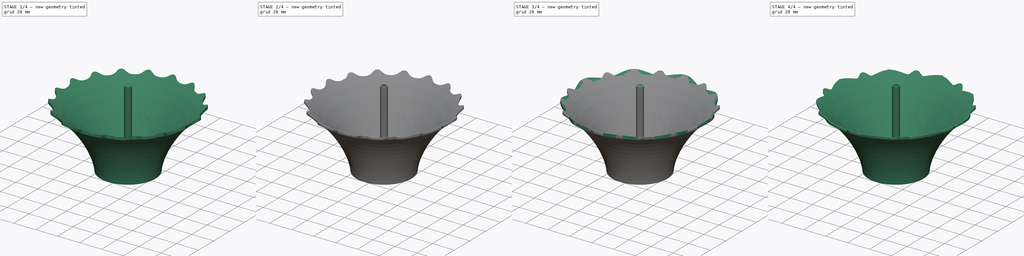
[diagram: build sequence overview — one tinted view per stage of 4, left to right]
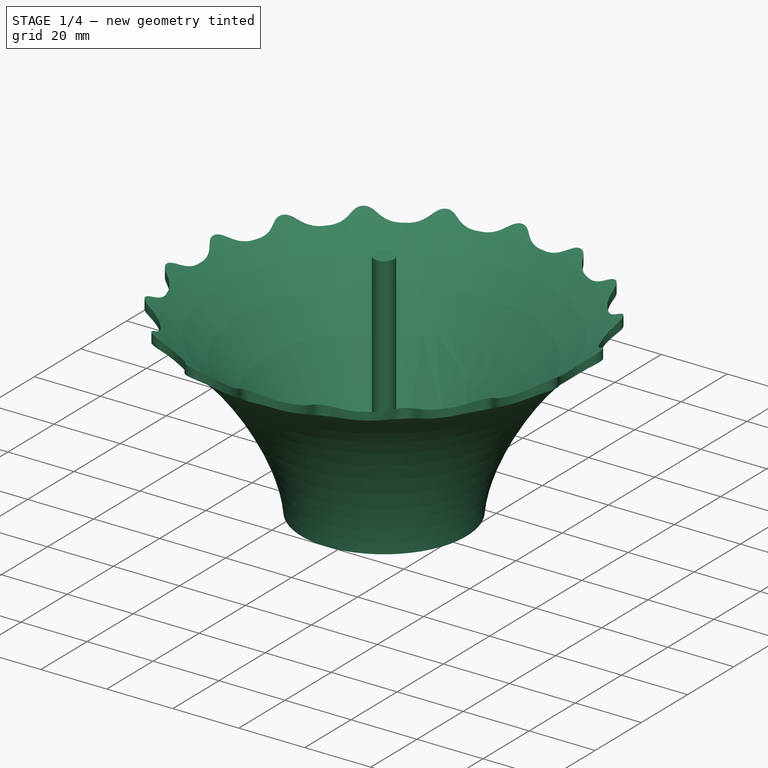
[diagram: stage 1 of 4 — iso view after this stage's code; geometry added in this stage tinted green]
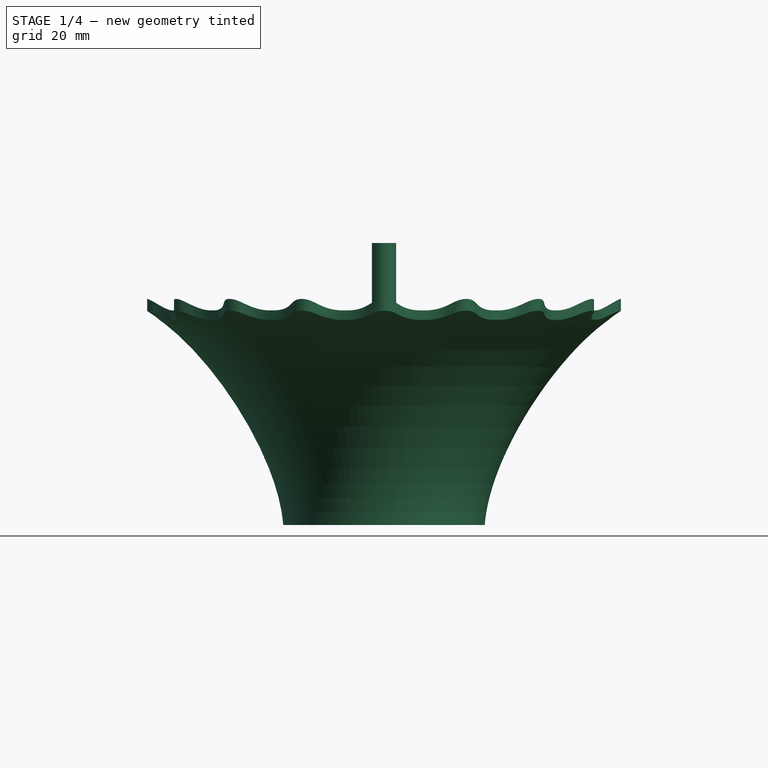
[diagram: stage 1 of 4 — front view after this stage's code; geometry added in this stage tinted green]
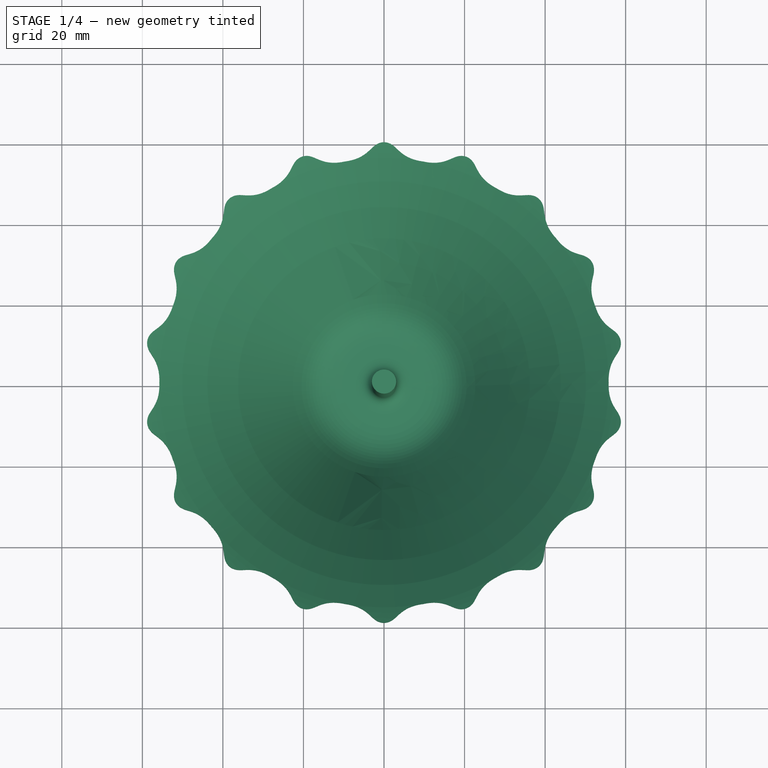
[diagram: stage 1 of 4 — top view after this stage's code; geometry added in this stage tinted green]
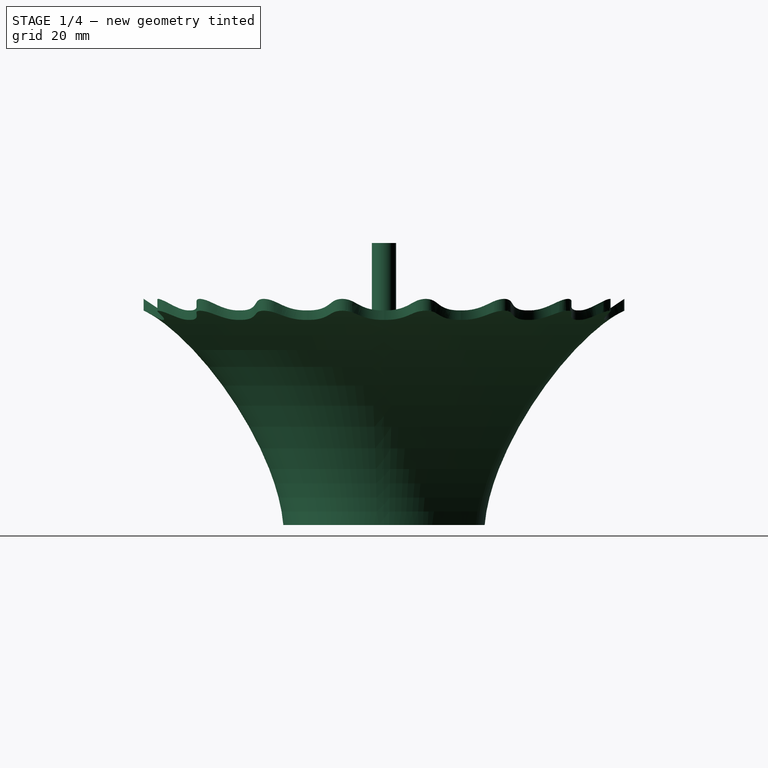
[diagram: stage 1 of 4 — right view after this stage's code; geometry added in this stage tinted green]
FCSTD DOCUMENT  (FreeCAD 1.0R39285 (Git))
Label: incence_holder
License: All rights reserved
objects: Sketcher::SketchObject×8, PartDesign::Pocket×6, PartDesign::Revolution×2, PartDesign::PolarPattern×2, PartDesign::Fillet×2, PartDesign::Body×2
note: 52 computed .brp shape members not serialized (recipe doc carries the construction recipe); baked Part::Feature solids carry a one-line shape summary decoded from their .brp

FEATURE [PartDesign::Body] Body  label="type1"
  AllowCompound = false
  Group = -> [Sketch,Revolution,Sketch001,Pocket,PolarPattern,Sketch002,Pocket001,Sketch003,Pocket002,Fillet]
  Origin = -> Origin
  Tip = -> Fillet
FEATURE [Sketcher::SketchObject] Sketch004
  ArcFitTolerance = 1e-06
  AttachmentSupport = -> [XZ_Plane001]
  FullyConstrained = false
  MakeInternals = false
  MapMode = 5
  Placement = pos=(0,0,0) rot=(1,0,0;1.5708rad)
  sketch-geometry (24):
    g0: LineSegment StartX=0 StartY=70 StartZ=0 EndX=0 EndY=0 EndZ=0
    g1: LineSegment StartX=0 StartY=70 StartZ=0 EndX=3 EndY=70 EndZ=0
    g2: LineSegment StartX=3 StartY=70 StartZ=0 EndX=3 EndY=10 EndZ=0
    g3: LineSegment StartX=0 StartY=0 StartZ=0 EndX=25 EndY=0 EndZ=0
    g4-g7: Circle [constr] x4 (B-spline internal-alignment scaffolding for g8; pole/knot coordinates omitted)
    g8: BSplineCurve PolesCount=4 KnotsCount=2 Degree=3 IsPeriodic=0
    g9: GeomPoint [constr] X=25 Y=0 Z=0
    g10: GeomPoint [constr] X=60 Y=53.3515 Z=0
    g11-g17: Circle [constr] x7 (B-spline internal-alignment scaffolding for g18; pole/knot coordinates omitted)
    g18: BSplineCurve PolesCount=7 KnotsCount=5 Degree=3 IsPeriodic=0
    g19-g22: GeomPoint [constr] x4 (B-spline internal-alignment scaffolding for g18; pole/knot coordinates omitted)
    g23: LineSegment StartX=60 StartY=56.3515 StartZ=0 EndX=60 EndY=53.3515 EndZ=0
  constraints (39):
    c: PointOnObject(g0,g-2)
    c: Coincident(g0,g-1)
    c: Coincident(g1,g0)
    c: Horizontal(g1)
    c: Distance(g1,g1) = 3
    c: DistanceY(g-1,g0) = 70
    c: Distance(g2) = 60
    c: Coincident(g2,g1)
    c: Vertical(g2)
    c: Coincident(g3,g0)
    c: PointOnObject(g3,g-1)
    c: DistanceX(g3,g3) = 25
    c: Weight(g4) = 1
    c: Equal(g4,g5)
    c: Equal(g4,g6)
    c: Equal(g4,g7)
    c: InternalAlignment(g4-g7 -> g8) x4
    c: InternalAlignment(g9,g8)
    c: InternalAlignment(g10,g8)
    c: Distance(g4,g5) = 20
    c: Coincident(g4,g3)
    c: Weight(g11) = 1
    c: Equal(g11, g12-g17) x6
    c: InternalAlignment(g11-g17 -> g18) x7
    c: InternalAlignment(g19-g22 -> g18) x4
    c: Distance(g11,g12) = 5
    c: Distance(g12,g13) = 5
    c: Distance(g13,g14) = 10
    c: Coincident(g11,g2)
    c: Coincident(g15,g5)
    c: Coincident(g16,g6)
    c: Vertical(g18,g8)
    c: Coincident(g23,g18)
    c: Coincident(g23,g8)
    c: DistanceY(g23,g23) = 3
    c: DistanceX(g0,g18) = 60
    c: Vertical(g12,g18)
    c: Horizontal(g13,g12)
    c: Horizontal(g14,g13)
FEATURE [PartDesign::Revolution] Revolution001
  Angle = 360
  Angle2 = 60
  Axis = (0,-2e-16,-1)
  Base = (0,1.55e-14,70)
  Placement = pos=(0,0,0) rot=(1,0,0;1.5708rad)
  Profile = -> Sketch004
  ReferenceAxis = -> Sketch004 [Edge1]
  Refine = true
  Reversed = true
  Suppressed = false
  Type = 0
FEATURE [Sketcher::SketchObject] Sketch005
  ArcFitTolerance = 1e-06
  AttachmentSupport = -> [XY_Plane001]
  ExternalGeometry = -> [Revolution001]
  FullyConstrained = false
  MakeInternals = false
  MapMode = 5
  sketch-geometry (17):
    g0: Circle [constr] CenterX=0 CenterY=0 CenterZ=0 NormalX=0 NormalY=0 NormalZ=1 AngleXU=0 Radius=55.79
    g1-g6: Circle [constr] x6 (B-spline internal-alignment scaffolding for g7; pole/knot coordinates omitted)
    g7: BSplineCurve PolesCount=6 KnotsCount=4 Degree=3 IsPeriodic=0
    g8-g11: GeomPoint [constr] x4 (B-spline internal-alignment scaffolding for g7; pole/knot coordinates omitted)
    g12: LineSegment [constr] StartX=0 StartY=0 StartZ=0 EndX=-9.68783 EndY=54.9424 EndZ=0
    g13: LineSegment [constr] StartX=0 StartY=0 StartZ=0 EndX=9.68783 EndY=54.9424 EndZ=0
    g14: LineSegment StartX=-9.68783 StartY=54.9424 StartZ=0 EndX=-13.2602 EndY=75.2024 EndZ=0
    g15: LineSegment StartX=-13.2602 StartY=75.2024 StartZ=0 EndX=13.2602 EndY=75.2024 EndZ=0
    g16: LineSegment StartX=13.2602 StartY=75.2024 StartZ=0 EndX=9.68783 EndY=54.9424 EndZ=0
  constraints (30):
    c: Coincident(g0,g-1)
    c: Diameter(g-3) = 120
    c: Diameter(g0) = 111.58
    c: Weight(g1) = 1
    c: Equal(g1, g2-g6) x5
    c: InternalAlignment(g1-g6 -> g7) x6
    c: InternalAlignment(g8-g11 -> g7) x4
    c: PointOnObject(g1,g0)
    c: PointOnObject(g2,g0)
    c: PointOnObject(g3,g-3)
    c: PointOnObject(g4,g-3)
    c: PointOnObject(g5,g0)
    c: Coincident(g12,g0)
    c: Coincident(g12,g7)
    c: Coincident(g13,g0)
    c: Coincident(g13,g7)
    c: DistanceX(g3,g-1) = 2.5
    c: DistanceX(g-1,g4) = 2.5
    c: DistanceX(g-1,g5) = 5
    c: DistanceX(g2,g-1) = 5
    c: Angle(g13,g-2) = 0.174533
    c: Angle(g-2,g12) = 0.174533
    c: Coincident(g14,g7)
    c: Coincident(g14,g15)
    c: Horizontal(g15)
    c: Coincident(g15,g16)
    c: PointOnObject(g16,g0)
    c: Angle(g13,g16) = 3.14159
    c: Coincident(g16,g7)
    c: Angle(g12,g14) = 3.14159
FEATURE [PartDesign::Pocket] Pocket003  label="bord_single001"
  BaseFeature = -> Revolution001
  Direction = (0,0,-1)
  Length = 5
  Length2 = 5
  Placement = pos=(0,0,0) rot=(1,0,0;1.5708rad)
  Profile = -> Sketch005
  ReferenceAxis = -> Sketch005 [N_Axis]
  Refine = true
  Reversed = true
  Suppressed = false
  Type = 1
FEATURE [PartDesign::PolarPattern] PolarPattern001  label="bord_polar001"
  Angle = 360
  Axis = -> Z_Axis001
  BaseFeature = -> Pocket003
  Mode = 0
  Occurrences = 18
  Offset = 120
  Originals = -> [Pocket003]
  Placement = pos=(0,0,0) rot=(1,0,0;1.5708rad)
  Refine = true
  Suppressed = false
  TransformMode = 0
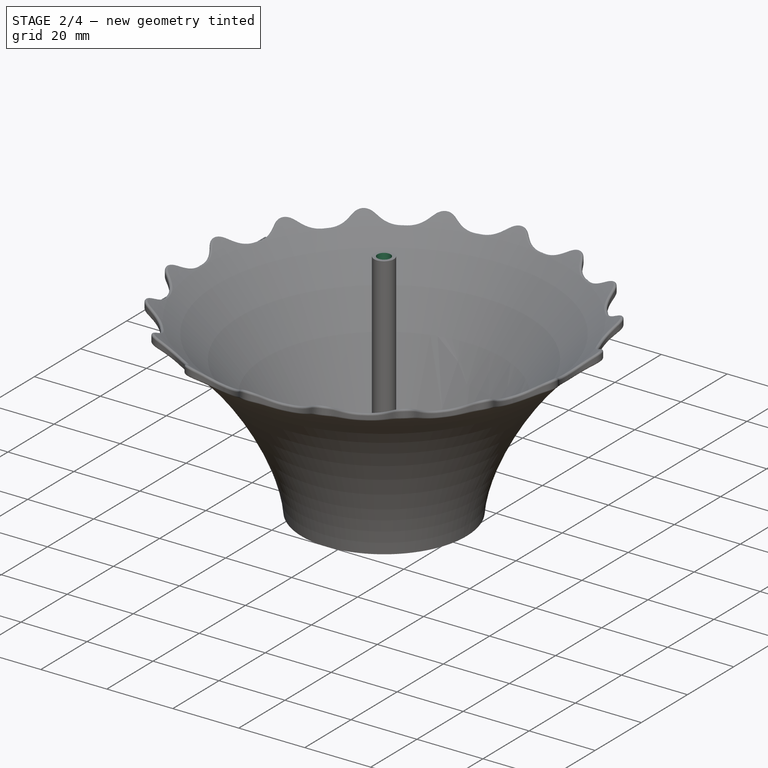
[diagram: stage 2 of 4 — iso view after this stage's code; geometry added in this stage tinted green]
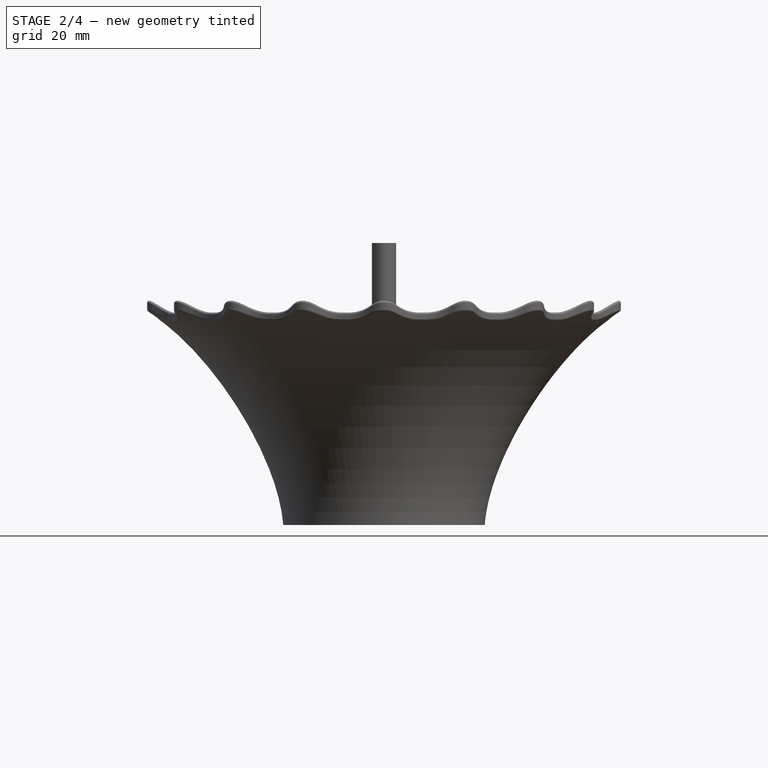
[diagram: stage 2 of 4 — front view after this stage's code; geometry added in this stage tinted green]
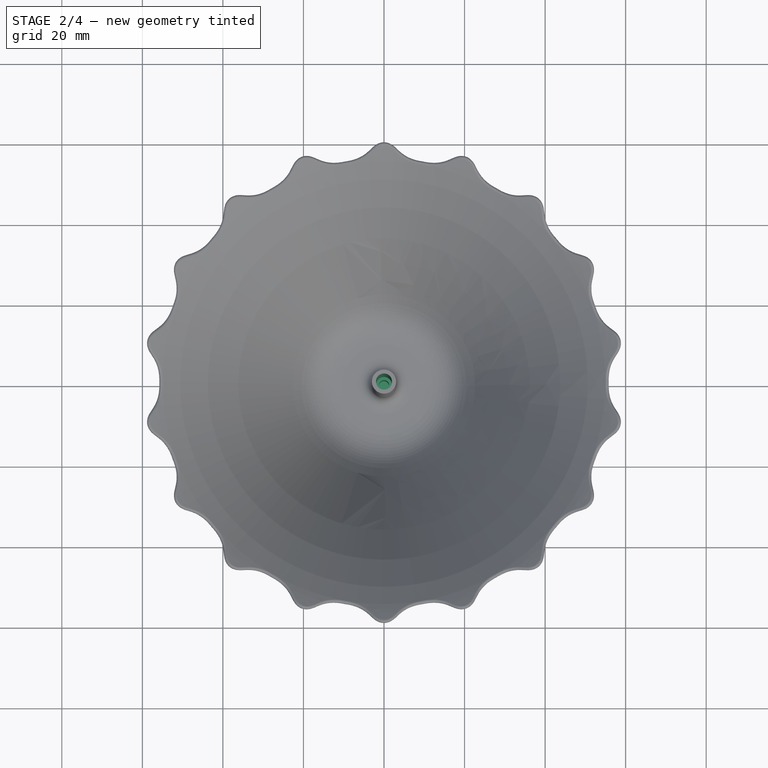
[diagram: stage 2 of 4 — top view after this stage's code; geometry added in this stage tinted green]
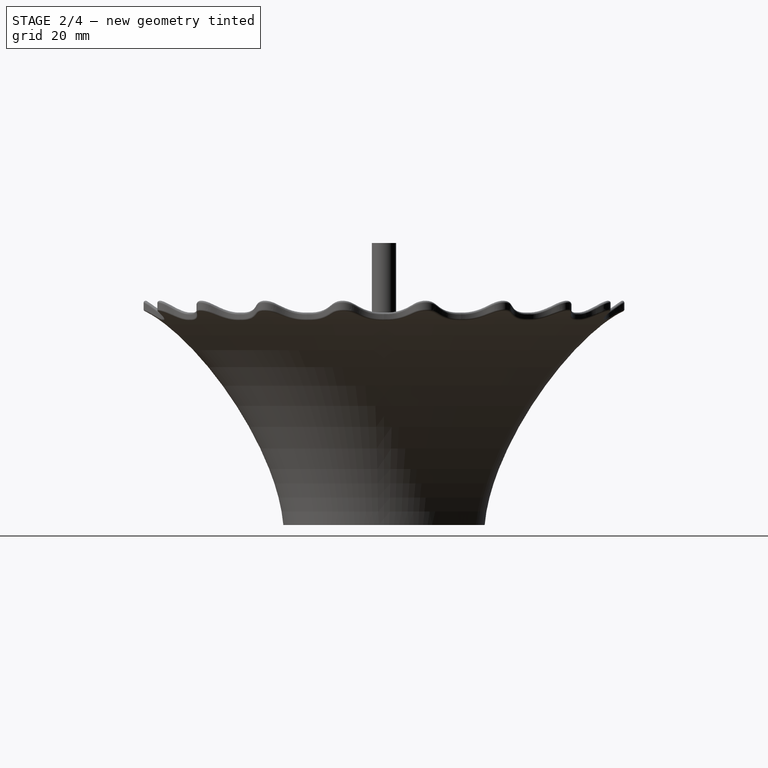
[diagram: stage 2 of 4 — right view after this stage's code; geometry added in this stage tinted green]
FEATURE [Sketcher::SketchObject] Sketch006
  ArcFitTolerance = 1e-06
  AttachmentSupport = -> [PolarPattern001]
  FullyConstrained = true
  MakeInternals = false
  MapMode = 5
  Placement = pos=(0,3.08e-14,70) rot=(0,0,1;3.14159rad)
  sketch-geometry (1):
    g0: Circle CenterX=0 CenterY=0 CenterZ=0 NormalX=0 NormalY=0 NormalZ=1 AngleXU=0 Radius=1.25
  constraints (2):
    c: Diameter(g0) = 2.5
    c: Coincident(g0,g-1)
FEATURE [PartDesign::Pocket] Pocket004  label="small_hole001"
  BaseFeature = -> PolarPattern001
  Direction = (0,0,-1)
  Length = 68
  Length2 = 5
  Placement = pos=(0,0,0) rot=(1,0,0;1.5708rad)
  Profile = -> Sketch006
  ReferenceAxis = -> Sketch006 [N_Axis]
  Refine = true
  Suppressed = false
  Type = 0
FEATURE [Sketcher::SketchObject] Sketch007
  ArcFitTolerance = 1e-06
  AttachmentSupport = -> [Pocket004]
  FullyConstrained = true
  MakeInternals = false
  MapMode = 5
  Placement = pos=(0,3.08e-14,70) rot=(0,0,1;3.14159rad)
  sketch-geometry (1):
    g0: Circle CenterX=0 CenterY=0 CenterZ=0 NormalX=0 NormalY=0 NormalZ=1 AngleXU=0 Radius=2
  constraints (2):
    c: Diameter(g0) = 4
    c: Coincident(g0,g-1)
FEATURE [PartDesign::Pocket] Pocket005  label="big_hole001"
  BaseFeature = -> Pocket004
  Direction = (0,0,-1)
  Length = 50
  Length2 = 5
  Placement = pos=(0,0,0) rot=(1,0,0;1.5708rad)
  Profile = -> Sketch007
  ReferenceAxis = -> Sketch007 [N_Axis]
  Refine = true
  Suppressed = false
  Type = 0
FEATURE [PartDesign::Fillet] Fillet001
  Base = -> Pocket005 [Edge32,Edge8]
  BaseFeature = -> Pocket005
  Placement = pos=(0,0,0) rot=(1,0,0;1.5708rad)
  Radius = 0.5
  Refine = true
  SupportTransform = false
  Suppressed = false
  UseAllEdges = false
FEATURE [PartDesign::Body] Body001  label="type2"
  AllowCompound = false
  Group = -> [Sketch004,Revolution001,Sketch005,Pocket003,PolarPattern001,Sketch006,Pocket004,Sketch007,Pocket005,Fillet001]
  Origin = -> Origin001
  Placement = pos=(141.03,0,0) rot=(0,0,1;0rad)
  Tip = -> Fillet001
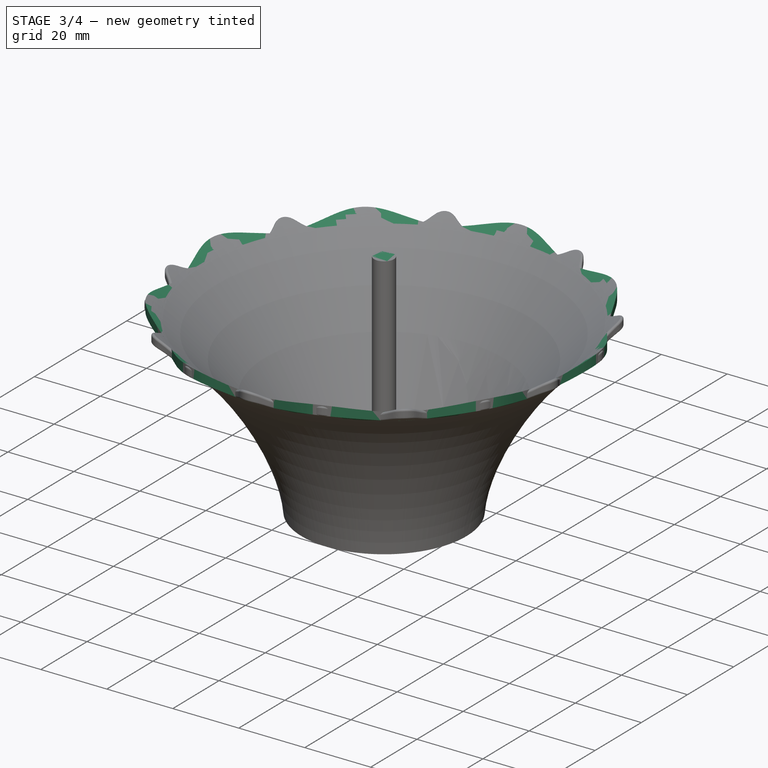
[diagram: stage 3 of 4 — iso view after this stage's code; geometry added in this stage tinted green]
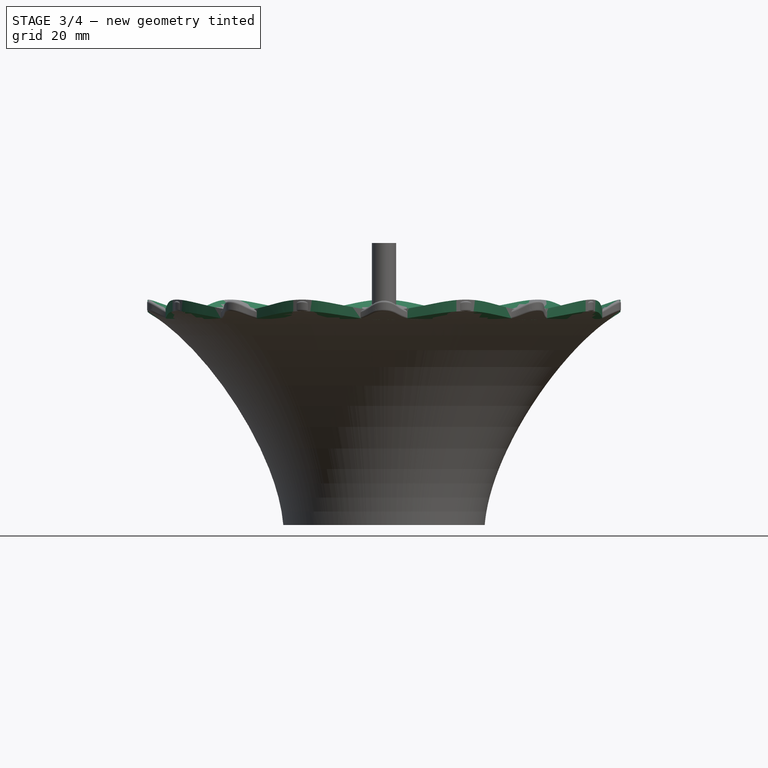
[diagram: stage 3 of 4 — front view after this stage's code; geometry added in this stage tinted green]
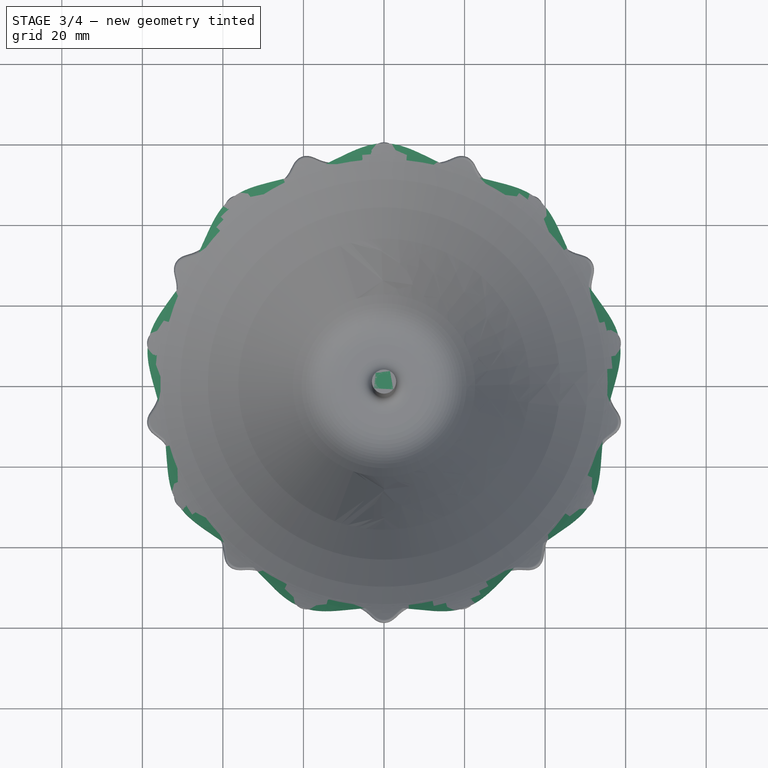
[diagram: stage 3 of 4 — top view after this stage's code; geometry added in this stage tinted green]
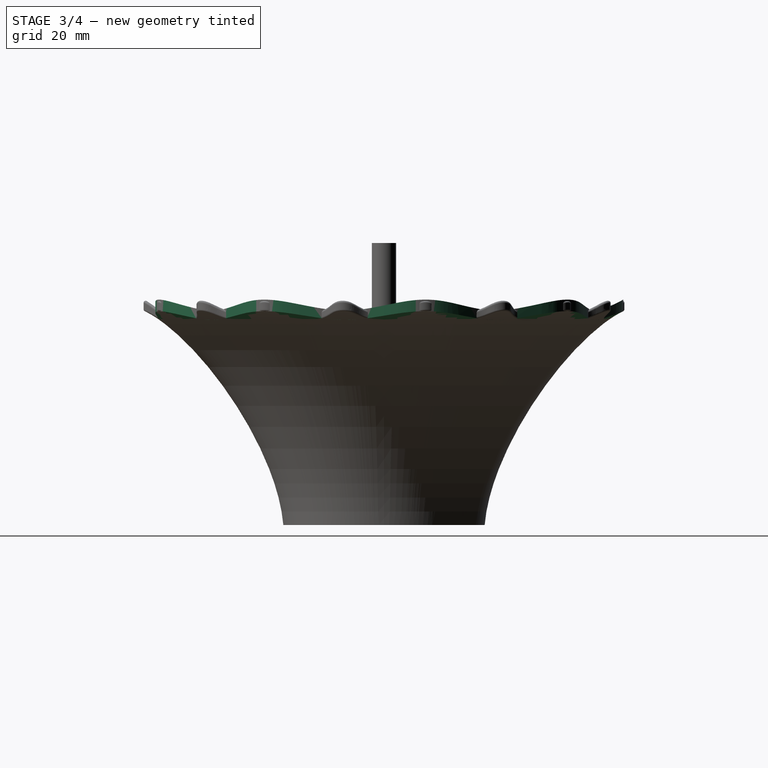
[diagram: stage 3 of 4 — right view after this stage's code; geometry added in this stage tinted green]
FEATURE [Sketcher::SketchObject] Sketch
  ArcFitTolerance = 1e-06
  AttachmentSupport = -> [XZ_Plane]
  FullyConstrained = false
  MakeInternals = false
  MapMode = 5
  Placement = pos=(0,0,0) rot=(1,0,0;1.5708rad)
  sketch-geometry (24):
    g0: LineSegment StartX=0 StartY=70 StartZ=0 EndX=0 EndY=0 EndZ=0
    g1: LineSegment StartX=0 StartY=70 StartZ=0 EndX=3 EndY=70 EndZ=0
    g2: LineSegment StartX=3 StartY=70 StartZ=0 EndX=3 EndY=10 EndZ=0
    g3: LineSegment StartX=0 StartY=0 StartZ=0 EndX=25 EndY=0 EndZ=0
    g4-g7: Circle [constr] x4 (B-spline internal-alignment scaffolding for g8; pole/knot coordinates omitted)
    g8: BSplineCurve PolesCount=4 KnotsCount=2 Degree=3 IsPeriodic=0
    g9: GeomPoint [constr] X=25 Y=0 Z=0
    g10: GeomPoint [constr] X=60 Y=53.3515 Z=0
    g11-g17: Circle [constr] x7 (B-spline internal-alignment scaffolding for g18; pole/knot coordinates omitted)
    g18: BSplineCurve PolesCount=7 KnotsCount=5 Degree=3 IsPeriodic=0
    g19-g22: GeomPoint [constr] x4 (B-spline internal-alignment scaffolding for g18; pole/knot coordinates omitted)
    g23: LineSegment StartX=60 StartY=56.3515 StartZ=0 EndX=60 EndY=53.3515 EndZ=0
  constraints (39):
    c: PointOnObject(g0,g-2)
    c: Coincident(g0,g-1)
    c: Coincident(g1,g0)
    c: Horizontal(g1)
    c: Distance(g1,g1) = 3
    c: DistanceY(g-1,g0) = 70
    c: Distance(g2) = 60
    c: Coincident(g2,g1)
    c: Vertical(g2)
    c: Coincident(g3,g0)
    c: PointOnObject(g3,g-1)
    c: DistanceX(g3,g3) = 25
    c: Weight(g4) = 1
    c: Equal(g4,g5)
    c: Equal(g4,g6)
    c: Equal(g4,g7)
    c: InternalAlignment(g4-g7 -> g8) x4
    c: InternalAlignment(g9,g8)
    c: InternalAlignment(g10,g8)
    c: Distance(g4,g5) = 20
    c: Coincident(g4,g3)
    c: Weight(g11) = 1
    c: Equal(g11, g12-g17) x6
    c: InternalAlignment(g11-g17 -> g18) x7
    c: InternalAlignment(g19-g22 -> g18) x4
    c: Distance(g11,g12) = 5
    c: Distance(g12,g13) = 5
    c: Distance(g13,g14) = 10
    c: Coincident(g11,g2)
    c: Coincident(g15,g5)
    c: Coincident(g16,g6)
    c: Vertical(g18,g8)
    c: Coincident(g23,g18)
    c: Coincident(g23,g8)
    c: DistanceY(g23,g23) = 3
    c: DistanceX(g0,g18) = 60
    c: Vertical(g12,g18)
    c: Horizontal(g13,g12)
    c: Horizontal(g14,g13)
FEATURE [PartDesign::Revolution] Revolution
  Angle = 360
  Angle2 = 60
  Axis = (0,-2e-16,-1)
  Base = (0,1.55e-14,70)
  Placement = pos=(0,0,0) rot=(1,0,0;1.5708rad)
  Profile = -> Sketch
  ReferenceAxis = -> Sketch [Edge1]
  Refine = true
  Reversed = true
  Suppressed = false
  Type = 0
FEATURE [Sketcher::SketchObject] Sketch001
  ArcFitTolerance = 1e-06
  AttachmentSupport = -> [XY_Plane]
  ExternalGeometry = -> [Revolution]
  FullyConstrained = false
  MakeInternals = false
  MapMode = 5
  sketch-geometry (17):
    g0: Circle [constr] CenterX=0 CenterY=0 CenterZ=0 NormalX=0 NormalY=0 NormalZ=1 AngleXU=0 Radius=55.79
    g1-g6: Circle [constr] x6 (B-spline internal-alignment scaffolding for g7; pole/knot coordinates omitted)
    g7: BSplineCurve PolesCount=6 KnotsCount=4 Degree=3 IsPeriodic=0
    g8-g11: GeomPoint [constr] x4 (B-spline internal-alignment scaffolding for g7; pole/knot coordinates omitted)
    g12: LineSegment [constr] StartX=0 StartY=0 StartZ=0 EndX=-19.0813 EndY=52.4255 EndZ=0
    g13: LineSegment [constr] StartX=0 StartY=0 StartZ=0 EndX=19.0813 EndY=52.4255 EndZ=0
    g14: LineSegment StartX=-19.0813 StartY=52.4255 StartZ=0 EndX=-27.3714 EndY=75.2024 EndZ=0
    g15: LineSegment StartX=-27.3714 StartY=75.2024 StartZ=0 EndX=27.3714 EndY=75.2024 EndZ=0
    g16: LineSegment StartX=27.3714 StartY=75.2024 StartZ=0 EndX=19.0813 EndY=52.4255 EndZ=0
  constraints (30):
    c: Coincident(g0,g-1)
    c: Diameter(g-3) = 120
    c: Diameter(g0) = 111.58
    c: Weight(g1) = 1
    c: Equal(g1, g2-g6) x5
    c: InternalAlignment(g1-g6 -> g7) x6
    c: InternalAlignment(g8-g11 -> g7) x4
    c: PointOnObject(g1,g0)
    c: PointOnObject(g2,g0)
    c: PointOnObject(g3,g-3)
    c: PointOnObject(g4,g-3)
    c: PointOnObject(g5,g0)
    c: Coincident(g12,g0)
    c: Coincident(g12,g7)
    c: Coincident(g13,g0)
    c: Coincident(g13,g7)
    c: DistanceX(g3,g-1) = 5
    c: DistanceX(g-1,g4) = 5
    c: DistanceX(g-1,g5) = 15
    c: DistanceX(g2,g-1) = 15
    c: Angle(g13,g-2) = 0.349066
    c: Angle(g-2,g12) = 0.349066
    c: Coincident(g14,g7)
    c: Coincident(g14,g15)
    c: Horizontal(g15)
    c: Coincident(g15,g16)
    c: PointOnObject(g16,g0)
    c: Angle(g13,g16) = 3.14159
    c: Coincident(g16,g7)
    c: Angle(g12,g14) = 3.14159
FEATURE [PartDesign::Pocket] Pocket  label="bord_single"
  BaseFeature = -> Revolution
  Direction = (0,0,-1)
  Length = 5
  Length2 = 5
  Placement = pos=(0,0,0) rot=(1,0,0;1.5708rad)
  Profile = -> Sketch001
  ReferenceAxis = -> Sketch001 [N_Axis]
  Refine = true
  Reversed = true
  Suppressed = false
  Type = 1
FEATURE [PartDesign::PolarPattern] PolarPattern  label="bord_polar"
  Angle = 360
  Axis = -> Z_Axis
  BaseFeature = -> Pocket
  Mode = 0
  Occurrences = 9
  Offset = 120
  Originals = -> [Pocket]
  Placement = pos=(0,0,0) rot=(1,0,0;1.5708rad)
  Refine = true
  Suppressed = false
  TransformMode = 0
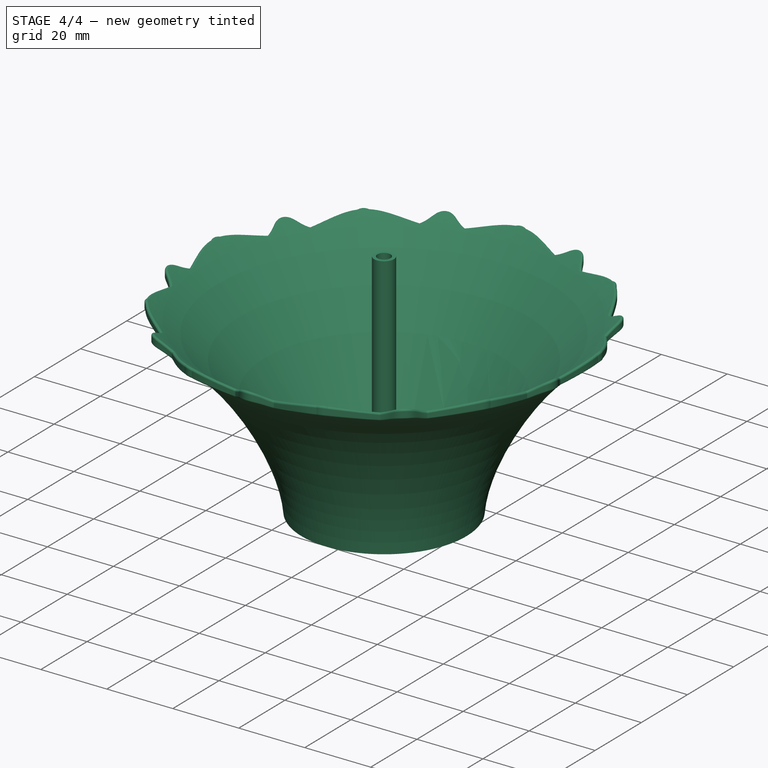
[diagram: stage 4 of 4 — iso view after this stage's code; geometry added in this stage tinted green]
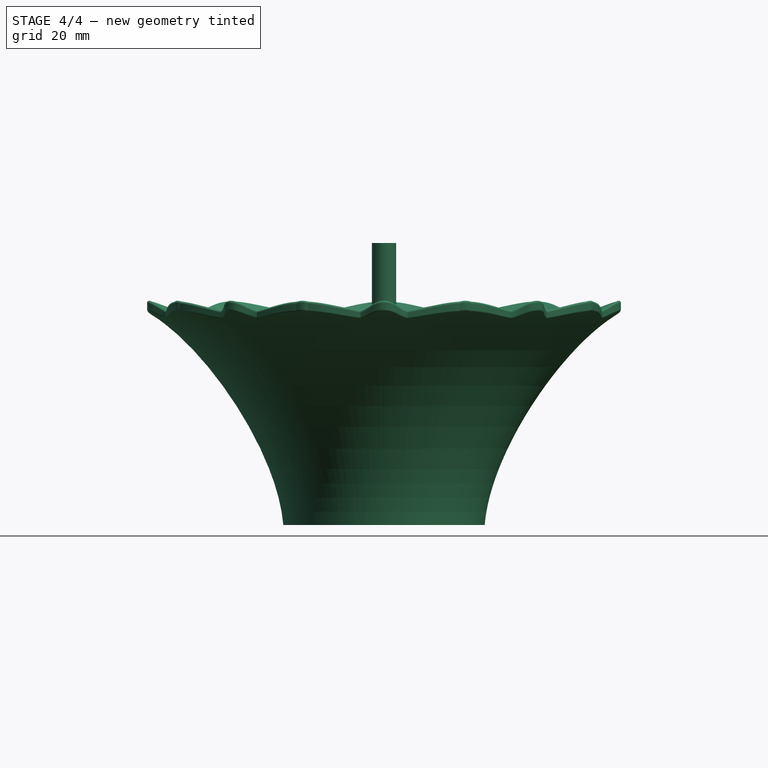
[diagram: stage 4 of 4 — front view after this stage's code; geometry added in this stage tinted green]
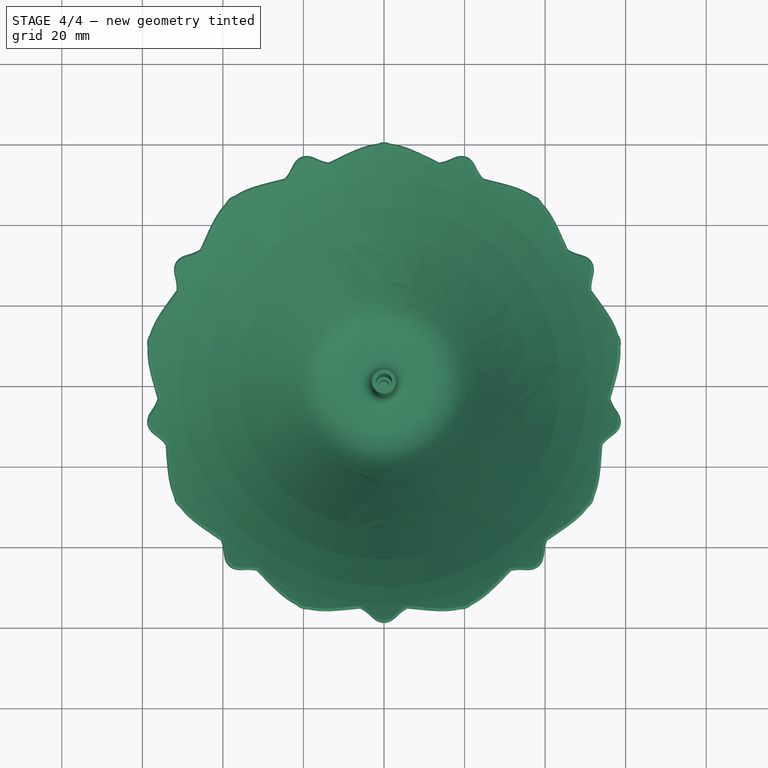
[diagram: stage 4 of 4 — top view after this stage's code; geometry added in this stage tinted green]
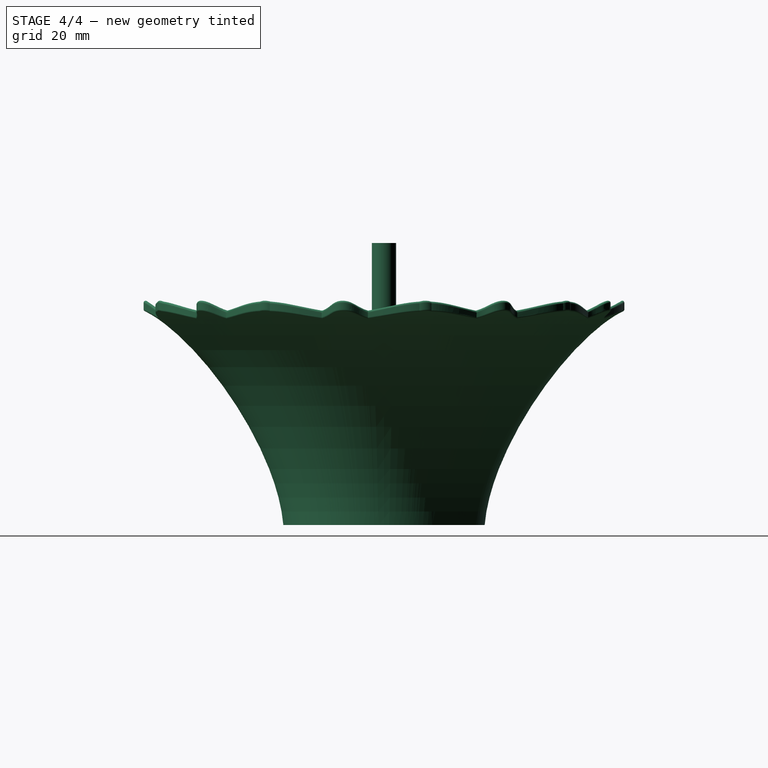
[diagram: stage 4 of 4 — right view after this stage's code; geometry added in this stage tinted green]
FEATURE [Sketcher::SketchObject] Sketch002
  ArcFitTolerance = 1e-06
  AttachmentSupport = -> [PolarPattern]
  FullyConstrained = true
  MakeInternals = false
  MapMode = 5
  Placement = pos=(0,3.08e-14,70) rot=(0,0,1;3.14159rad)
  sketch-geometry (1):
    g0: Circle CenterX=0 CenterY=0 CenterZ=0 NormalX=0 NormalY=0 NormalZ=1 AngleXU=0 Radius=1.25
  constraints (2):
    c: Diameter(g0) = 2.5
    c: Coincident(g0,g-1)
FEATURE [PartDesign::Pocket] Pocket001  label="small_hole"
  BaseFeature = -> PolarPattern
  Direction = (0,0,-1)
  Length = 68
  Length2 = 5
  Placement = pos=(0,0,0) rot=(1,0,0;1.5708rad)
  Profile = -> Sketch002
  ReferenceAxis = -> Sketch002 [N_Axis]
  Refine = true
  Suppressed = false
  Type = 0
FEATURE [Sketcher::SketchObject] Sketch003
  ArcFitTolerance = 1e-06
  AttachmentSupport = -> [Pocket001]
  FullyConstrained = true
  MakeInternals = false
  MapMode = 5
  Placement = pos=(0,3.08e-14,70) rot=(0,0,1;3.14159rad)
  sketch-geometry (1):
    g0: Circle CenterX=0 CenterY=0 CenterZ=0 NormalX=0 NormalY=0 NormalZ=1 AngleXU=0 Radius=2
  constraints (2):
    c: Diameter(g0) = 4
    c: Coincident(g0,g-1)
FEATURE [PartDesign::Pocket] Pocket002  label="big_hole"
  BaseFeature = -> Pocket001
  Direction = (0,0,-1)
  Length = 50
  Length2 = 5
  Placement = pos=(0,0,0) rot=(1,0,0;1.5708rad)
  Profile = -> Sketch003
  ReferenceAxis = -> Sketch003 [N_Axis]
  Refine = true
  Suppressed = false
  Type = 0
FEATURE [PartDesign::Fillet] Fillet
  Base = -> Pocket002 [Edge15,Edge3]
  BaseFeature = -> Pocket002
  Placement = pos=(0,0,0) rot=(1,0,0;1.5708rad)
  Radius = 0.5
  Refine = true
  SupportTransform = false
  Suppressed = false
  UseAllEdges = false
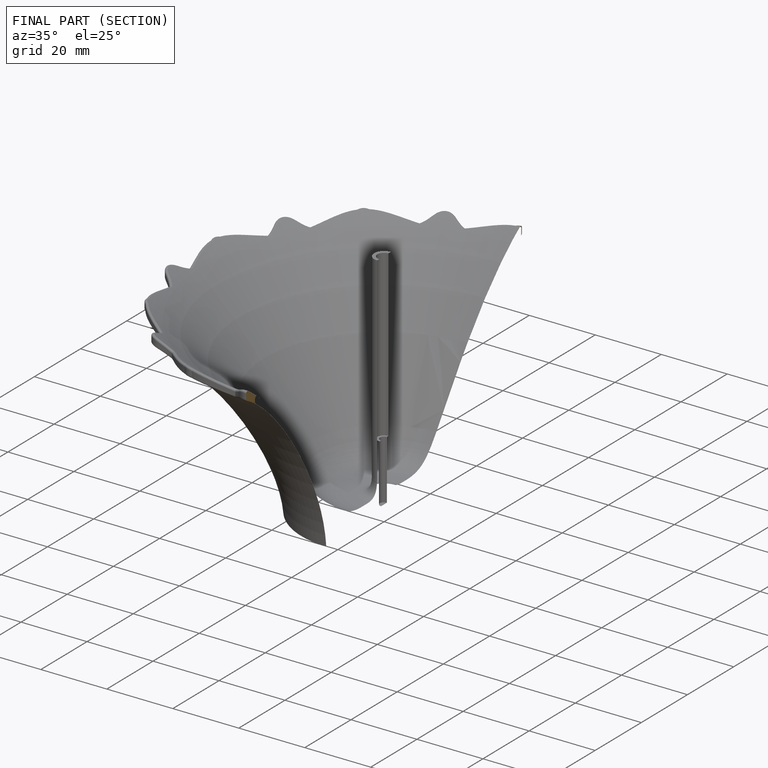
[diagram: finished part — half-section view (interior)]
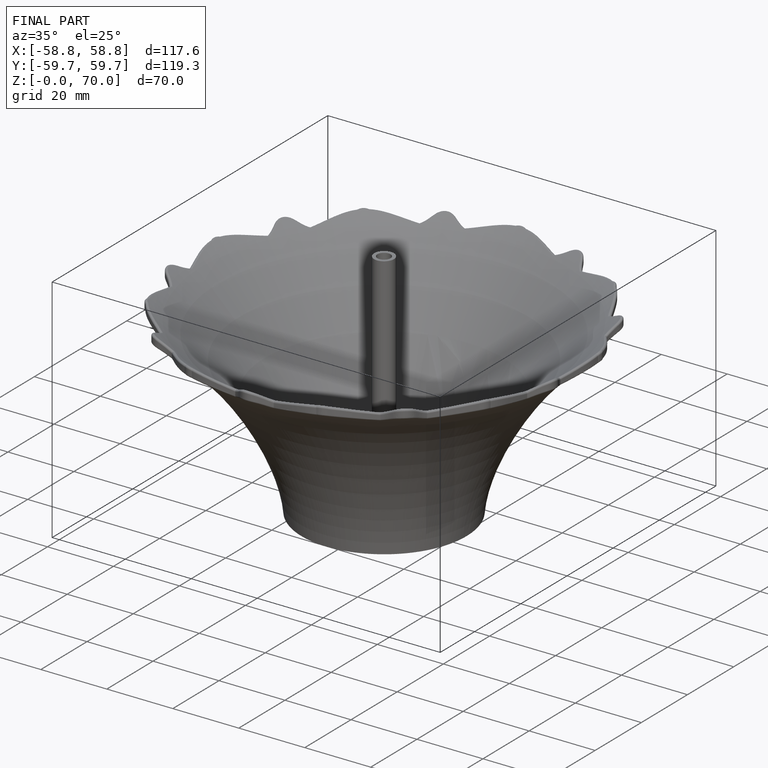
[diagram: finished part — iso view with bounding-box wireframe]
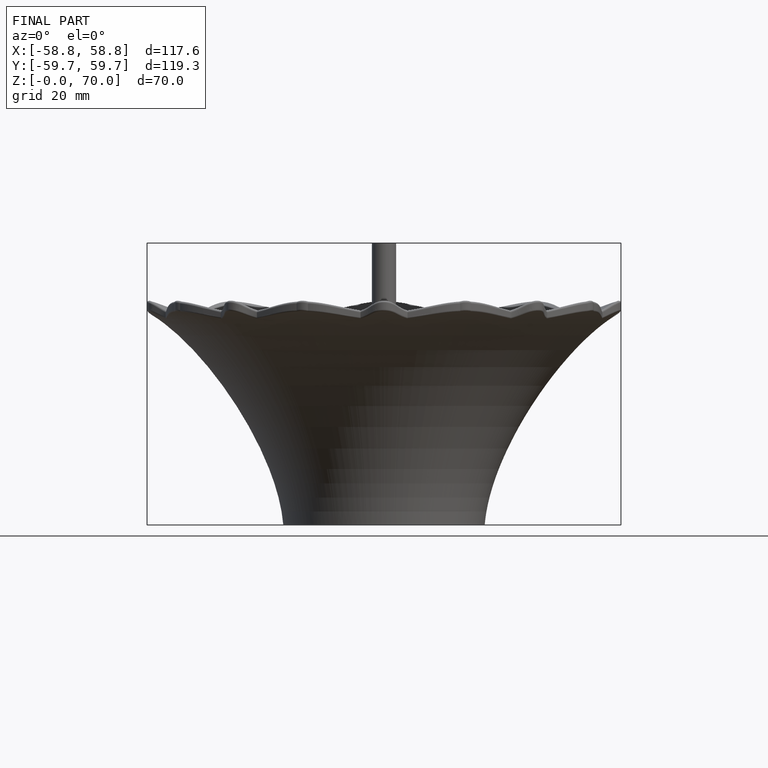
[diagram: finished part — front view with bounding-box wireframe]
